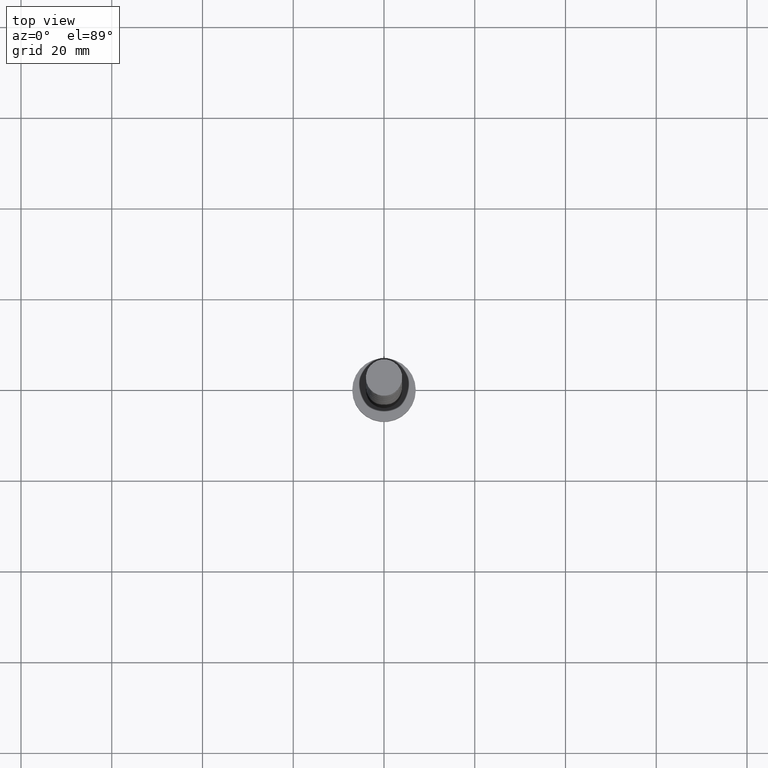
[diagram: clean part render]
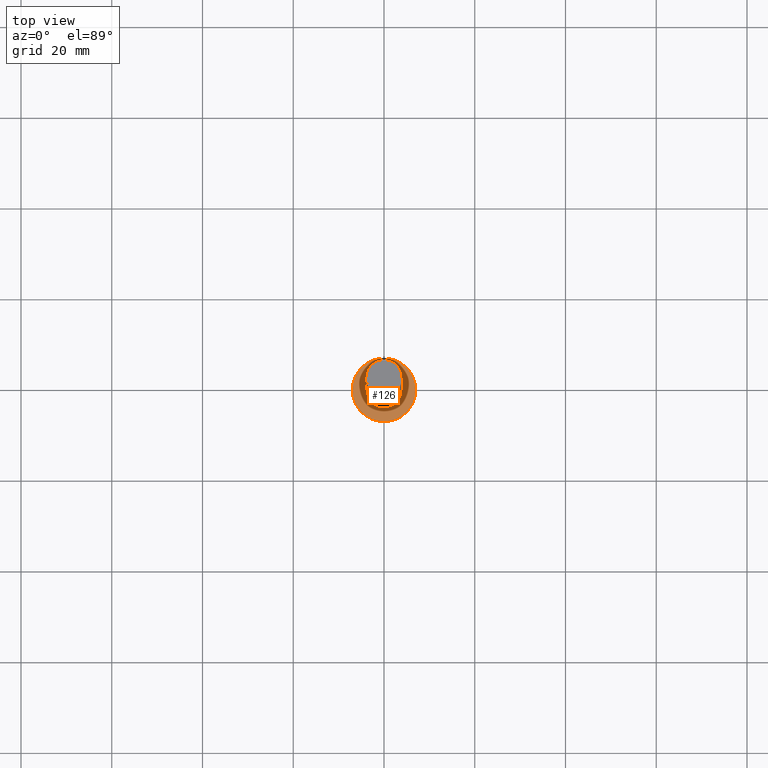
[diagram: same view with one face highlighted and labeled with its STEP entity id]
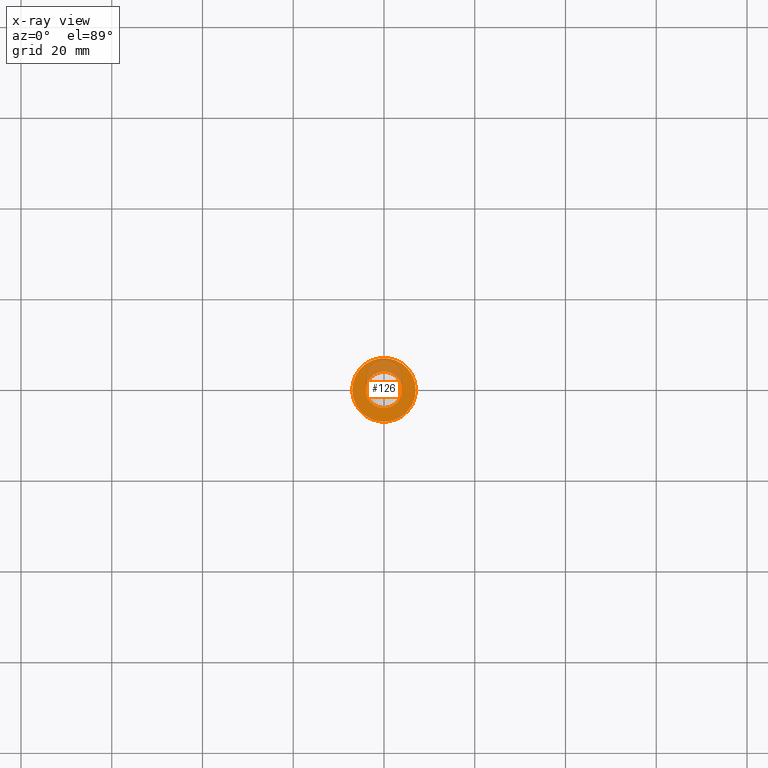
[diagram: x-ray of the same camera — body ghosted, the highlighted face saturated]
A machine part, top view. The second image highlights one B-rep face of the part: STEP entity #126.
The next image is the same camera in x-ray: the body ghosted, the highlighted face saturated — about 21% of this face is hidden behind the body in this view.
In plain terms, the highlighted planar face has unit normal (0, 0, 1).
Its self-contained STEP definition (entity closure, byte-faithful):
#34 = CIRCLE ( 'NONE', #244, 4.000000000000000000 ) ;
#36 = CIRCLE ( 'NONE', #872, 4.000000000000000000 ) ;
#41 = VERTEX_POINT ( 'NONE', #131 ) ;
#95 = PLANE ( 'NONE',  #1331 ) ;
#119 = ORIENTED_EDGE ( 'NONE', *, *, #191, .F. ) ;
#126 = ADVANCED_FACE ( 'NONE', ( #1260, #1625 ), #95, .T. ) ;
#131 = CARTESIAN_POINT ( 'NONE',  ( 7.000000000000000000, 8.572527594031473190E-16, 5.000000000000000000 ) ) ;
#191 = EDGE_CURVE ( 'NONE', #1421, #975, #34, .T. ) ;
#244 = AXIS2_PLACEMENT_3D ( 'NONE', #1102, #855, #1368 ) ;
#312 = DIRECTION ( 'NONE',  ( 1.000000000000000000, 0.000000000000000000, 0.000000000000000000 ) ) ;
#315 = CARTESIAN_POINT ( 'NONE',  ( 0.000000000000000000, 0.000000000000000000, 5.000000000000000000 ) ) ;
#374 = EDGE_CURVE ( 'NONE', #1170, #41, #1070, .T. ) ;
#492 = ORIENTED_EDGE ( 'NONE', *, *, #1301, .T. ) ;
#500 = DIRECTION ( 'NONE',  ( 0.000000000000000000, 0.000000000000000000, 1.000000000000000000 ) ) ;
#521 = AXIS2_PLACEMENT_3D ( 'NONE', #868, #580, #312 ) ;
#580 = DIRECTION ( 'NONE',  ( 0.000000000000000000, 0.000000000000000000, 1.000000000000000000 ) ) ;
#583 = ORIENTED_EDGE ( 'NONE', *, *, #777, .F. ) ;
#611 = DIRECTION ( 'NONE',  ( 1.000000000000000000, 0.000000000000000000, -0.000000000000000000 ) ) ;
#619 = CARTESIAN_POINT ( 'NONE',  ( -4.000000000000000000, 0.000000000000000000, 5.000000000000000000 ) ) ;
#640 = EDGE_LOOP ( 'NONE', ( #1394, #492 ) ) ;
#733 = AXIS2_PLACEMENT_3D ( 'NONE', #1552, #500, #1026 ) ;
#777 = EDGE_CURVE ( 'NONE', #975, #1421, #36, .T. ) ;
#810 = DIRECTION ( 'NONE',  ( 0.000000000000000000, 0.000000000000000000, 1.000000000000000000 ) ) ;
#835 = DIRECTION ( 'NONE',  ( 0.000000000000000000, 0.000000000000000000, 1.000000000000000000 ) ) ;
#855 = DIRECTION ( 'NONE',  ( 0.000000000000000000, 0.000000000000000000, 1.000000000000000000 ) ) ;
#868 = CARTESIAN_POINT ( 'NONE',  ( 0.000000000000000000, 0.000000000000000000, 5.000000000000000000 ) ) ;
#872 = AXIS2_PLACEMENT_3D ( 'NONE', #1344, #810, #1231 ) ;
#975 = VERTEX_POINT ( 'NONE', #619 ) ;
#1026 = DIRECTION ( 'NONE',  ( 1.000000000000000000, 0.000000000000000000, 0.000000000000000000 ) ) ;
#1070 = CIRCLE ( 'NONE', #733, 7.000000000000000000 ) ;
#1072 = CIRCLE ( 'NONE', #521, 7.000000000000000000 ) ;
#1102 = CARTESIAN_POINT ( 'NONE',  ( 0.000000000000000000, 0.000000000000000000, 5.000000000000000000 ) ) ;
#1170 = VERTEX_POINT ( 'NONE', #1533 ) ;
#1231 = DIRECTION ( 'NONE',  ( 1.000000000000000000, 0.000000000000000000, 0.000000000000000000 ) ) ;
#1260 = FACE_BOUND ( 'NONE', #1497, .T. ) ;
#1301 = EDGE_CURVE ( 'NONE', #41, #1170, #1072, .T. ) ;
#1331 = AXIS2_PLACEMENT_3D ( 'NONE', #315, #835, #611 ) ;
#1344 = CARTESIAN_POINT ( 'NONE',  ( 0.000000000000000000, 0.000000000000000000, 5.000000000000000000 ) ) ;
#1368 = DIRECTION ( 'NONE',  ( 1.000000000000000000, 0.000000000000000000, 0.000000000000000000 ) ) ;
#1394 = ORIENTED_EDGE ( 'NONE', *, *, #374, .T. ) ;
#1421 = VERTEX_POINT ( 'NONE', #1485 ) ;
#1485 = CARTESIAN_POINT ( 'NONE',  ( 4.000000000000000000, 4.898587196589412829E-16, 5.000000000000000000 ) ) ;
#1497 = EDGE_LOOP ( 'NONE', ( #583, #119 ) ) ;
#1533 = CARTESIAN_POINT ( 'NONE',  ( -7.000000000000000000, 0.000000000000000000, 5.000000000000000000 ) ) ;
#1552 = CARTESIAN_POINT ( 'NONE',  ( 0.000000000000000000, 0.000000000000000000, 5.000000000000000000 ) ) ;
#1625 = FACE_OUTER_BOUND ( 'NONE', #640, .T. ) ;